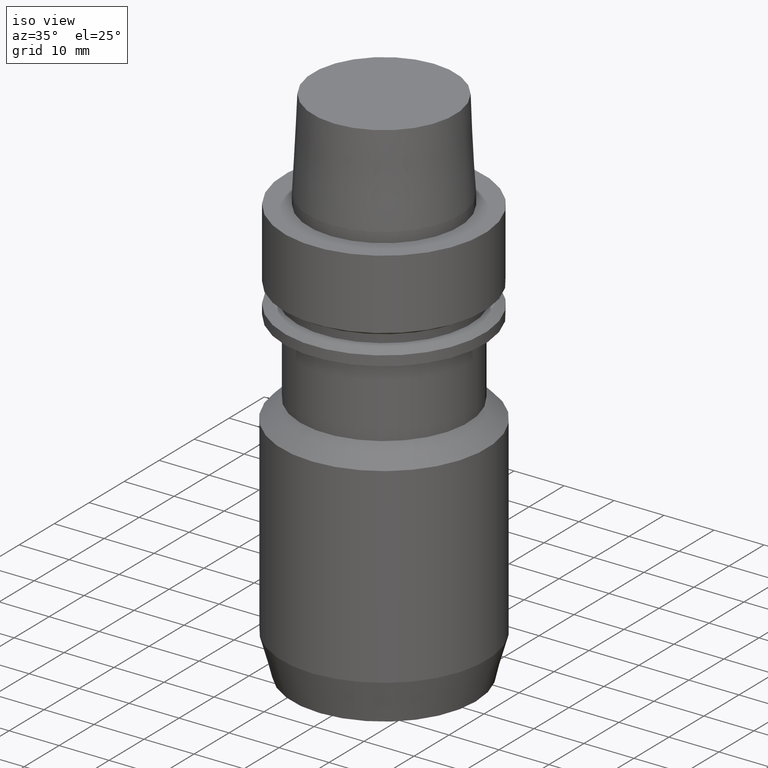
[diagram: clean part render]
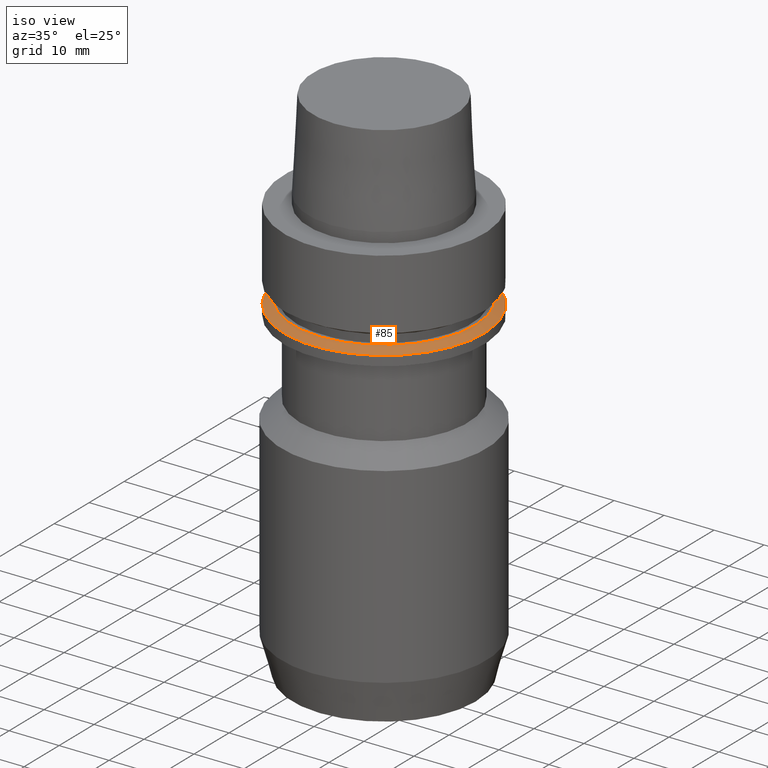
[diagram: same view with one face highlighted and labeled with its STEP entity id]
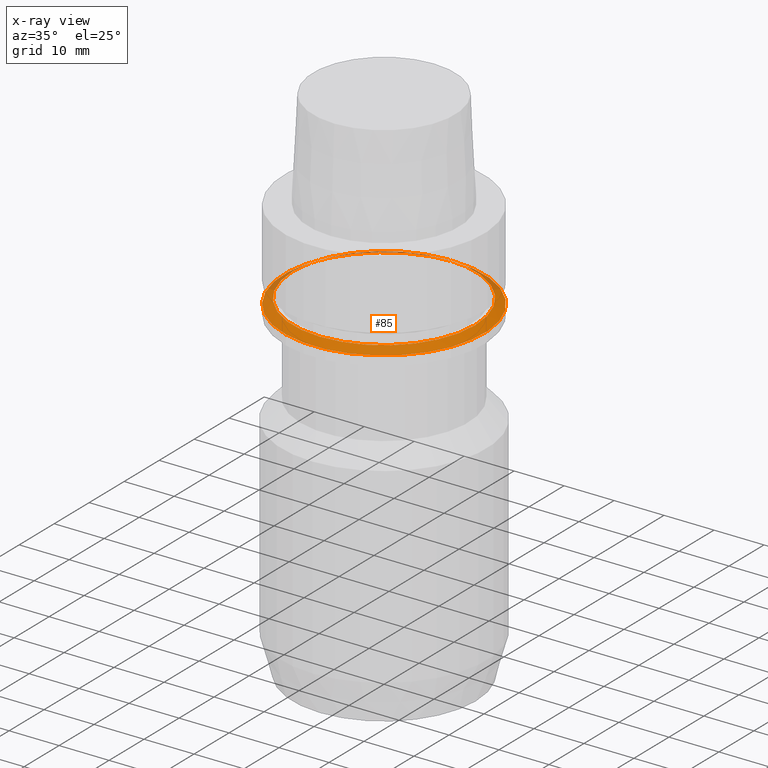
[diagram: x-ray of the same camera — body ghosted, the highlighted face saturated]
A machine part, iso view. The second image highlights one B-rep face of the part: STEP entity #85.
The next image is the same camera in x-ray: the body ghosted, the highlighted face saturated — about 10% of this face is hidden behind the body in this view.
In plain terms, the highlighted conical surface has half-angle 60 deg.
Its self-contained STEP definition (entity closure, byte-faithful):
#85=ADVANCED_FACE('',(#121,#122),#123,.T.);
#121=FACE_BOUND('',#170,.T.);
#122=FACE_BOUND('',#171,.T.);
#123=CONICAL_SURFACE('',#172,19.116025405,1.04719755151904);
#170=EDGE_LOOP('',(#239));
#171=EDGE_LOOP('',(#240));
#172=AXIS2_PLACEMENT_3D('',#241,#242,#243);
#239=ORIENTED_EDGE('',*,*,#284,.F.);
#240=ORIENTED_EDGE('',*,*,#283,.T.);
#241=CARTESIAN_POINT('',(1.07220049815594E-015,2.14440099631188E-015,-17.51036297));
#242=DIRECTION('',(6.12323399573677E-017,1.22464679914735E-016,-1.0));
#243=DIRECTION('',(-1.23259516440783E-032,1.0,1.22464679914735E-016));
#283=EDGE_CURVE('',#308,#308,#309,.T.);
#284=EDGE_CURVE('',#310,#310,#311,.T.);
#308=VERTEX_POINT('',#340);
#309=CIRCLE('',#341,18.23205081);
#310=VERTEX_POINT('',#342);
#311=CIRCLE('',#343,20.0);
#340=CARTESIAN_POINT('',(1.04094977927525E-015,18.23205081,-17.0));
#341=AXIS2_PLACEMENT_3D('',#381,#382,#383);
#342=CARTESIAN_POINT('',(1.10345121703663E-015,20.0,-18.02072594));
#343=AXIS2_PLACEMENT_3D('',#384,#385,#386);
#381=CARTESIAN_POINT('',(1.04094977927525E-015,2.0818995585505E-015,-17.0));
#382=DIRECTION('',(6.12323399573677E-017,1.22464679914735E-016,-1.0));
#383=DIRECTION('',(-1.23259516440783E-032,1.0,1.22464679914735E-016));
#384=CARTESIAN_POINT('',(1.10345121703663E-015,2.20690243407327E-015,-18.02072594));
#385=DIRECTION('',(6.12323399573677E-017,1.22464679914735E-016,-1.0));
#386=DIRECTION('',(-1.23259516440783E-032,1.0,1.22464679914735E-016));